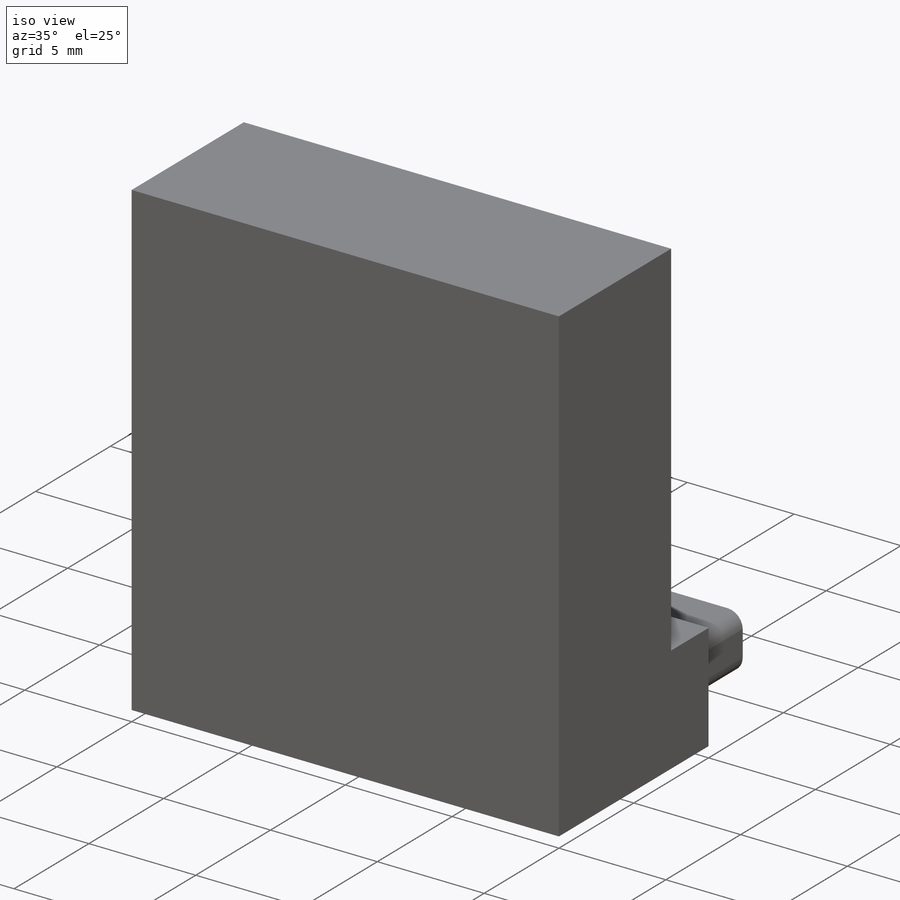
[diagram: iso view]
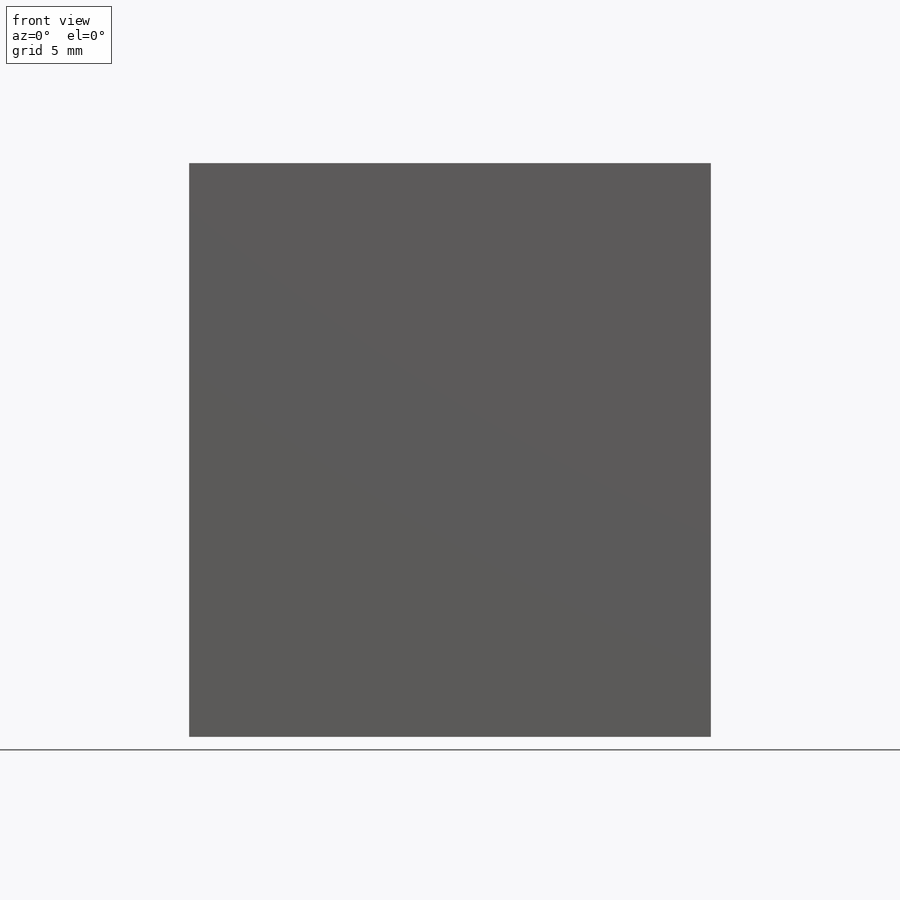
[diagram: front view]
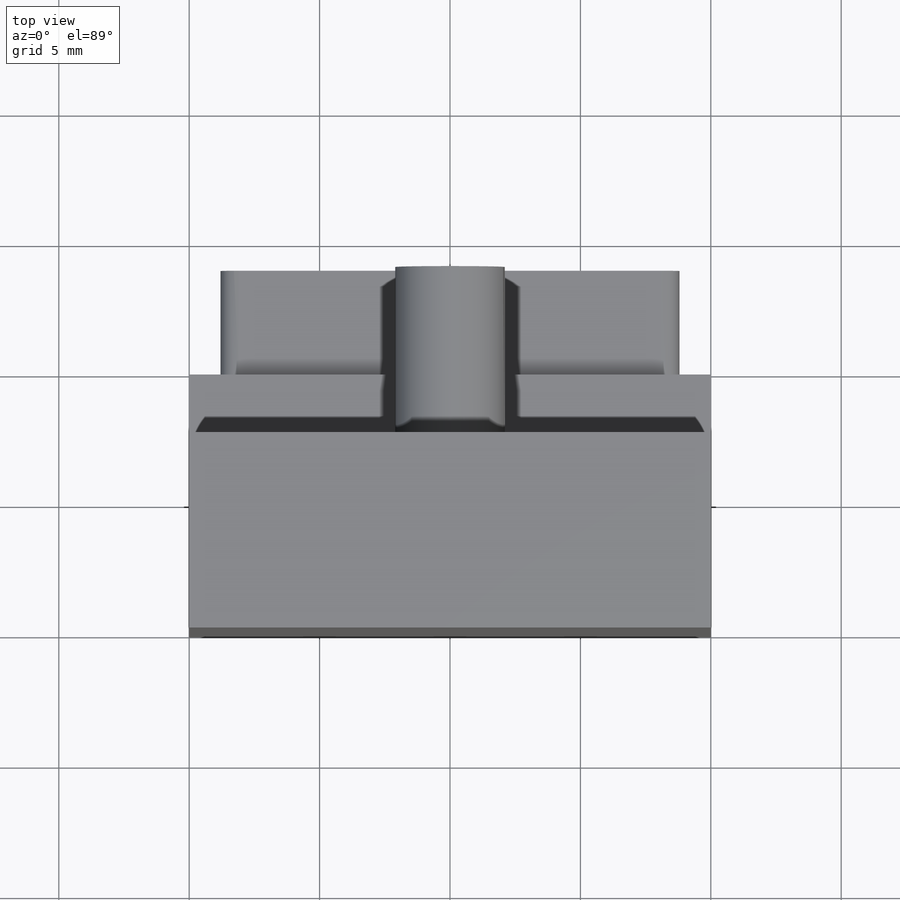
[diagram: top view]
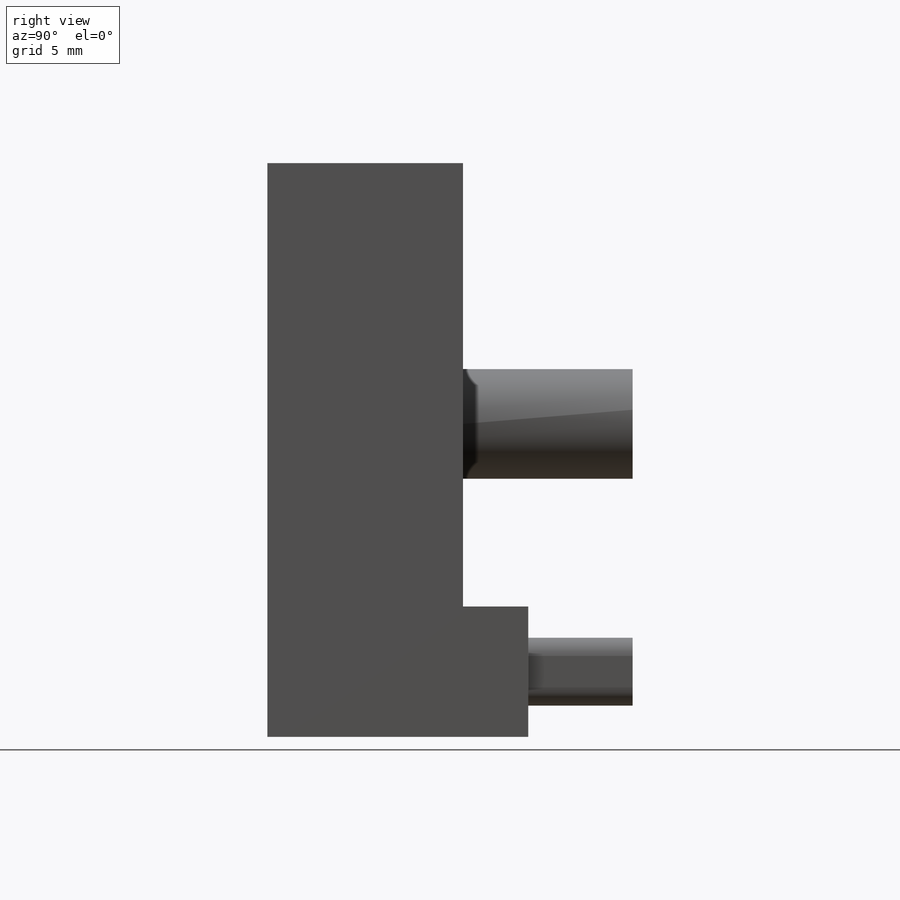
[diagram: right view]
SOLIDWORKS PART (.sldprt)
format: sldprt  version: not decoded by parser v0  size: 178,176 bytes
history: native  units: mm
features: sketch x5, extrude x4, material x1, fillet x1, plane x1, cut_extrude x1 (+12 scaffold rows collapsed)
feature tree (25):
  scaffold x12  (default folders/planes/origin — collapsed)
  material  "Material <not specified>"
  sketch  "Sketch1"  dims[D1=20.0mm D2=10.0mm]
  extrude  "Boss-Extrude1"  Depth=5mm
  sketch  "Sketch2"  dims[D1=1.2mm D2=1.2mm D3=1.2mm D4=1.2mm]
  extrude  "Boss-Extrude2"  Depth=4mm
  fillet  "Fillet1"  Radius=0.7mm
  sketch  "Sketch3"  dims[D1=2.5mm]
  extrude  "Boss-Extrude3"  Depth=17mm
  sketch  "Sketch4"  dims[c1.D1=~2.442289mm c1.D3=~1.221144mm c2.D1=5.0mm c2.D2=10.0mm c3.D1=7.0mm]
  extrude  "Boss-Extrude4"  [1 undecoded]
  plane  "Plane1"  Offset=17mm
  sketch  "Sketch5"  dims[D1=5.0mm]
  cut_extrude  "Cut-Extrude1"  [1 undecoded]
decode coverage: 9 of 11 modeling features carry decoded parameters
note: ~ marks probable driven/reference dimensions
note: 2 parameter values undecoded
note: suppression state not decoded; provenance and decode notes live in map.json
